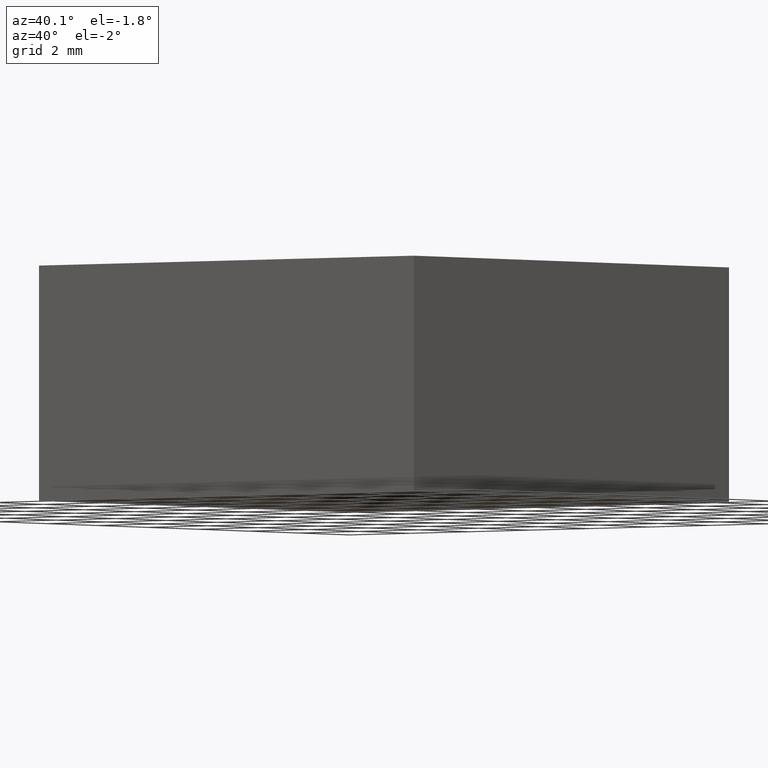
[diagram: clean part render]
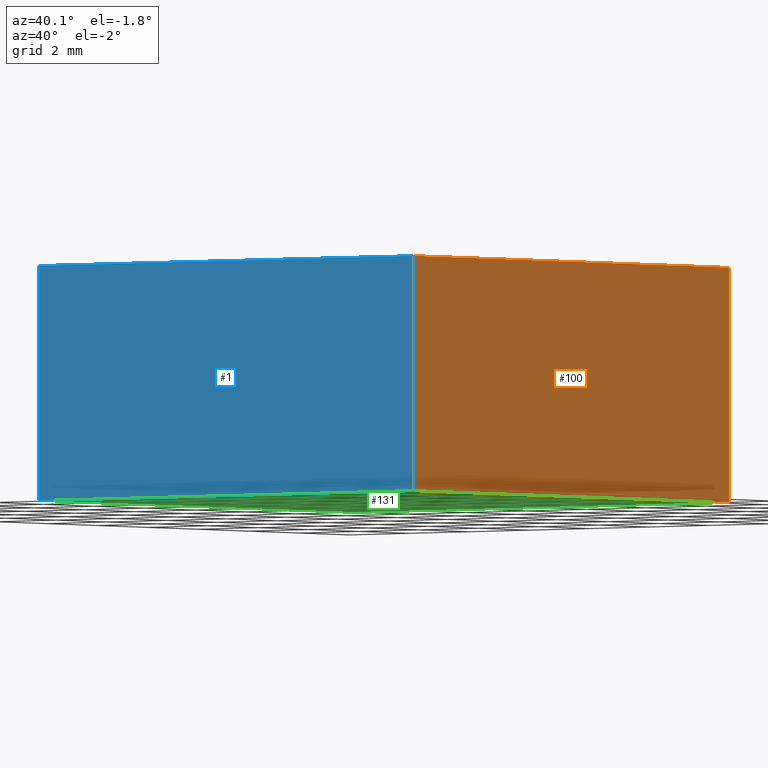
[diagram: same view with three faces highlighted in distinct colors, each labeled with its STEP entity id]
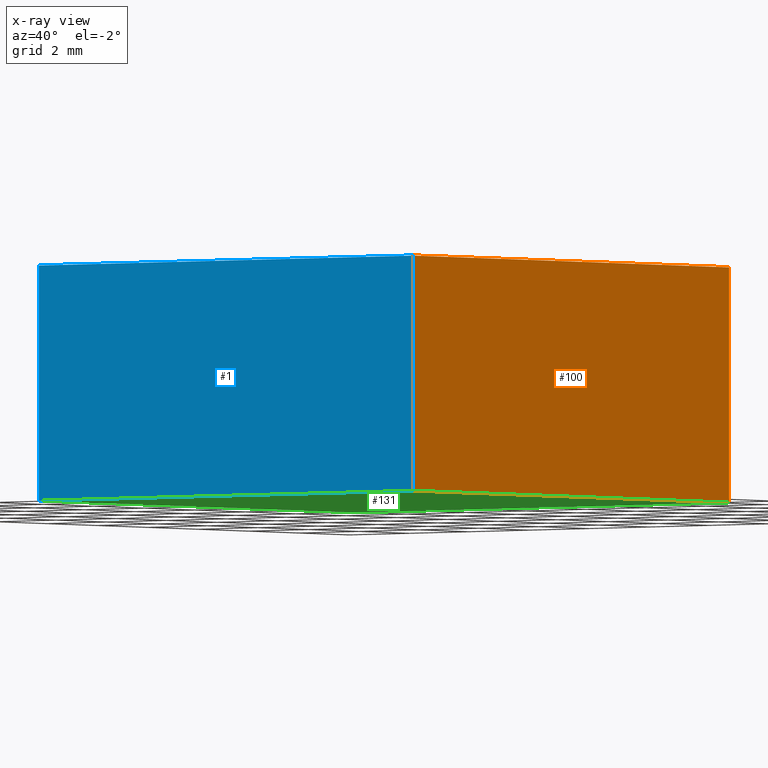
[diagram: x-ray of the same camera — body ghosted, the three highlighted faces saturated]
A machine part, auxiliary view with three faces highlighted in distinct colors.
The next image is the same camera in x-ray (body ghosted, the three faces saturated) — at least one of them is partly hidden behind the body in this view.
Their STEP definitions:

[orange] entity #100 — the highlighted planar face has unit normal (-1, 0, 0).
#6 = DIRECTION ( 'NONE',  ( -0.0000000000000000000, 1.000000000000000000, -0.0000000000000000000 ) ) ;
#12 = LINE ( 'NONE', #159, #88 ) ;
#21 = VERTEX_POINT ( 'NONE', #57 ) ;
#22 = DIRECTION ( 'NONE',  ( -0.0000000000000000000, -0.0000000000000000000, -1.000000000000000000 ) ) ;
#24 = CARTESIAN_POINT ( 'NONE',  ( 116.6543858644214900, 44.89658967450770900, 6.000000000000000000 ) ) ;
#37 = EDGE_CURVE ( 'NONE', #148, #21, #81, .T. ) ;
#38 = CARTESIAN_POINT ( 'NONE',  ( 116.6543858644214900, 32.39658967450770900, 0.0000000000000000000 ) ) ;
#39 = VECTOR ( 'NONE', #22, 1000.000000000000000 ) ;
#53 = LINE ( 'NONE', #196, #39 ) ;
#54 = VERTEX_POINT ( 'NONE', #89 ) ;
#55 = EDGE_LOOP ( 'NONE', ( #127, #202, #191, #173 ) ) ;
#57 = CARTESIAN_POINT ( 'NONE',  ( 116.6543858644214900, 44.89658967450770900, 6.000000000000000000 ) ) ;
#65 = EDGE_CURVE ( 'NONE', #21, #54, #12, .T. ) ;
#73 = VERTEX_POINT ( 'NONE', #38 ) ;
#74 = DIRECTION ( 'NONE',  ( 0.0000000000000000000, 0.0000000000000000000, 1.000000000000000000 ) ) ;
#75 = PLANE ( 'NONE',  #126 ) ;
#81 = LINE ( 'NONE', #179, #158 ) ;
#88 = VECTOR ( 'NONE', #137, 1000.000000000000000 ) ;
#89 = CARTESIAN_POINT ( 'NONE',  ( 116.6543858644214900, 44.89658967450770900, 0.0000000000000000000 ) ) ;
#92 = CARTESIAN_POINT ( 'NONE',  ( 116.6543858644214900, 32.39658967450770900, 6.000000000000000000 ) ) ;
#100 = ADVANCED_FACE ( 'NONE', ( #185 ), #75, .F. ) ;
#102 = VECTOR ( 'NONE', #6, 1000.000000000000000 ) ;
#106 = EDGE_CURVE ( 'NONE', #73, #54, #133, .T. ) ;
#125 = EDGE_CURVE ( 'NONE', #148, #73, #53, .T. ) ;
#126 = AXIS2_PLACEMENT_3D ( 'NONE', #24, #135, #74 ) ;
#127 = ORIENTED_EDGE ( 'NONE', *, *, #106, .T. ) ;
#133 = LINE ( 'NONE', #166, #102 ) ;
#135 = DIRECTION ( 'NONE',  ( -1.000000000000000000, 0.0000000000000000000, 0.0000000000000000000 ) ) ;
#137 = DIRECTION ( 'NONE',  ( -0.0000000000000000000, -0.0000000000000000000, -1.000000000000000000 ) ) ;
#147 = DIRECTION ( 'NONE',  ( -0.0000000000000000000, 1.000000000000000000, -0.0000000000000000000 ) ) ;
#148 = VERTEX_POINT ( 'NONE', #92 ) ;
#158 = VECTOR ( 'NONE', #147, 1000.000000000000000 ) ;
#159 = CARTESIAN_POINT ( 'NONE',  ( 116.6543858644214900, 44.89658967450770900, 6.000000000000000000 ) ) ;
#166 = CARTESIAN_POINT ( 'NONE',  ( 116.6543858644214900, 44.89658967450770900, 0.0000000000000000000 ) ) ;
#173 = ORIENTED_EDGE ( 'NONE', *, *, #125, .T. ) ;
#179 = CARTESIAN_POINT ( 'NONE',  ( 116.6543858644214900, 44.89658967450770900, 6.000000000000000000 ) ) ;
#185 = FACE_OUTER_BOUND ( 'NONE', #55, .T. ) ;
#191 = ORIENTED_EDGE ( 'NONE', *, *, #37, .F. ) ;
#196 = CARTESIAN_POINT ( 'NONE',  ( 116.6543858644214900, 32.39658967450770900, 6.000000000000000000 ) ) ;
#202 = ORIENTED_EDGE ( 'NONE', *, *, #65, .F. ) ;

[blue] entity #1 — the highlighted planar face has unit normal (0, 1, -0).
#1 = ADVANCED_FACE ( 'NONE', ( #69 ), #163, .F. ) ;
#10 = DIRECTION ( 'NONE',  ( -0.0000000000000000000, -0.0000000000000000000, -1.000000000000000000 ) ) ;
#11 = CARTESIAN_POINT ( 'NONE',  ( 104.1543858644214700, 32.39658967450770900, 6.000000000000000000 ) ) ;
#16 = ORIENTED_EDGE ( 'NONE', *, *, #86, .T. ) ;
#22 = DIRECTION ( 'NONE',  ( -0.0000000000000000000, -0.0000000000000000000, -1.000000000000000000 ) ) ;
#28 = CARTESIAN_POINT ( 'NONE',  ( 104.1543858644214700, 32.39658967450770900, 0.0000000000000000000 ) ) ;
#30 = LINE ( 'NONE', #105, #58 ) ;
#36 = ORIENTED_EDGE ( 'NONE', *, *, #83, .F. ) ;
#38 = CARTESIAN_POINT ( 'NONE',  ( 116.6543858644214900, 32.39658967450770900, 0.0000000000000000000 ) ) ;
#39 = VECTOR ( 'NONE', #22, 1000.000000000000000 ) ;
#41 = CARTESIAN_POINT ( 'NONE',  ( 116.6543858644214900, 32.39658967450770900, 6.000000000000000000 ) ) ;
#42 = DIRECTION ( 'NONE',  ( 0.0000000000000000000, 1.000000000000000000, -0.0000000000000000000 ) ) ;
#43 = CARTESIAN_POINT ( 'NONE',  ( 116.6543858644214900, 32.39658967450770900, 0.0000000000000000000 ) ) ;
#53 = LINE ( 'NONE', #196, #39 ) ;
#58 = VECTOR ( 'NONE', #119, 1000.000000000000000 ) ;
#69 = FACE_OUTER_BOUND ( 'NONE', #175, .T. ) ;
#73 = VERTEX_POINT ( 'NONE', #38 ) ;
#83 = EDGE_CURVE ( 'NONE', #157, #148, #30, .T. ) ;
#86 = EDGE_CURVE ( 'NONE', #157, #172, #161, .T. ) ;
#92 = CARTESIAN_POINT ( 'NONE',  ( 116.6543858644214900, 32.39658967450770900, 6.000000000000000000 ) ) ;
#105 = CARTESIAN_POINT ( 'NONE',  ( 116.6543858644214900, 32.39658967450770900, 6.000000000000000000 ) ) ;
#119 = DIRECTION ( 'NONE',  ( 1.000000000000000000, -0.0000000000000000000, -0.0000000000000000000 ) ) ;
#122 = LINE ( 'NONE', #43, #193 ) ;
#125 = EDGE_CURVE ( 'NONE', #148, #73, #53, .T. ) ;
#130 = ORIENTED_EDGE ( 'NONE', *, *, #174, .T. ) ;
#134 = CARTESIAN_POINT ( 'NONE',  ( 104.1543858644214700, 32.39658967450770900, 6.000000000000000000 ) ) ;
#143 = ORIENTED_EDGE ( 'NONE', *, *, #125, .F. ) ;
#148 = VERTEX_POINT ( 'NONE', #92 ) ;
#149 = AXIS2_PLACEMENT_3D ( 'NONE', #41, #42, #160 ) ;
#155 = VECTOR ( 'NONE', #10, 1000.000000000000000 ) ;
#157 = VERTEX_POINT ( 'NONE', #11 ) ;
#160 = DIRECTION ( 'NONE',  ( 0.0000000000000000000, 0.0000000000000000000, 1.000000000000000000 ) ) ;
#161 = LINE ( 'NONE', #134, #155 ) ;
#163 = PLANE ( 'NONE',  #149 ) ;
#172 = VERTEX_POINT ( 'NONE', #28 ) ;
#174 = EDGE_CURVE ( 'NONE', #172, #73, #122, .T. ) ;
#175 = EDGE_LOOP ( 'NONE', ( #130, #143, #36, #16 ) ) ;
#193 = VECTOR ( 'NONE', #197, 1000.000000000000000 ) ;
#196 = CARTESIAN_POINT ( 'NONE',  ( 116.6543858644214900, 32.39658967450770900, 6.000000000000000000 ) ) ;
#197 = DIRECTION ( 'NONE',  ( 1.000000000000000000, -0.0000000000000000000, -0.0000000000000000000 ) ) ;

[green] entity #131 — the highlighted planar face has unit normal (0, 0, -1).
#3 = VECTOR ( 'NONE', #9, 1000.000000000000000 ) ;
#4 = AXIS2_PLACEMENT_3D ( 'NONE', #47, #27, #95 ) ;
#6 = DIRECTION ( 'NONE',  ( -0.0000000000000000000, 1.000000000000000000, -0.0000000000000000000 ) ) ;
#9 = DIRECTION ( 'NONE',  ( -0.0000000000000000000, -1.000000000000000000, -0.0000000000000000000 ) ) ;
#27 = DIRECTION ( 'NONE',  ( 0.0000000000000000000, 0.0000000000000000000, -1.000000000000000000 ) ) ;
#28 = CARTESIAN_POINT ( 'NONE',  ( 104.1543858644214700, 32.39658967450770900, 0.0000000000000000000 ) ) ;
#29 = PLANE ( 'NONE',  #4 ) ;
#38 = CARTESIAN_POINT ( 'NONE',  ( 116.6543858644214900, 32.39658967450770900, 0.0000000000000000000 ) ) ;
#40 = EDGE_CURVE ( 'NONE', #54, #132, #146, .T. ) ;
#43 = CARTESIAN_POINT ( 'NONE',  ( 116.6543858644214900, 32.39658967450770900, 0.0000000000000000000 ) ) ;
#47 = CARTESIAN_POINT ( 'NONE',  ( 0.0000000000000000000, 0.0000000000000000000, 0.0000000000000000000 ) ) ;
#52 = LINE ( 'NONE', #104, #3 ) ;
#54 = VERTEX_POINT ( 'NONE', #89 ) ;
#63 = EDGE_CURVE ( 'NONE', #132, #172, #52, .T. ) ;
#68 = FACE_OUTER_BOUND ( 'NONE', #114, .T. ) ;
#70 = CARTESIAN_POINT ( 'NONE',  ( 104.1543858644214700, 44.89658967450770900, 0.0000000000000000000 ) ) ;
#73 = VERTEX_POINT ( 'NONE', #38 ) ;
#89 = CARTESIAN_POINT ( 'NONE',  ( 116.6543858644214900, 44.89658967450770900, 0.0000000000000000000 ) ) ;
#90 = DIRECTION ( 'NONE',  ( -1.000000000000000000, -0.0000000000000000000, -0.0000000000000000000 ) ) ;
#93 = ORIENTED_EDGE ( 'NONE', *, *, #174, .F. ) ;
#95 = DIRECTION ( 'NONE',  ( -1.000000000000000000, 0.0000000000000000000, -0.0000000000000000000 ) ) ;
#101 = ORIENTED_EDGE ( 'NONE', *, *, #63, .F. ) ;
#102 = VECTOR ( 'NONE', #6, 1000.000000000000000 ) ;
#104 = CARTESIAN_POINT ( 'NONE',  ( 104.1543858644214700, 38.64658967450770900, 0.0000000000000000000 ) ) ;
#106 = EDGE_CURVE ( 'NONE', #73, #54, #133, .T. ) ;
#108 = VECTOR ( 'NONE', #90, 1000.000000000000000 ) ;
#114 = EDGE_LOOP ( 'NONE', ( #93, #101, #154, #180 ) ) ;
#122 = LINE ( 'NONE', #43, #193 ) ;
#131 = ADVANCED_FACE ( 'NONE', ( #68 ), #29, .T. ) ;
#132 = VERTEX_POINT ( 'NONE', #181 ) ;
#133 = LINE ( 'NONE', #166, #102 ) ;
#146 = LINE ( 'NONE', #70, #108 ) ;
#154 = ORIENTED_EDGE ( 'NONE', *, *, #40, .F. ) ;
#166 = CARTESIAN_POINT ( 'NONE',  ( 116.6543858644214900, 44.89658967450770900, 0.0000000000000000000 ) ) ;
#172 = VERTEX_POINT ( 'NONE', #28 ) ;
#174 = EDGE_CURVE ( 'NONE', #172, #73, #122, .T. ) ;
#180 = ORIENTED_EDGE ( 'NONE', *, *, #106, .F. ) ;
#181 = CARTESIAN_POINT ( 'NONE',  ( 104.1543858644214700, 44.89658967450770900, 0.0000000000000000000 ) ) ;
#193 = VECTOR ( 'NONE', #197, 1000.000000000000000 ) ;
#197 = DIRECTION ( 'NONE',  ( 1.000000000000000000, -0.0000000000000000000, -0.0000000000000000000 ) ) ;